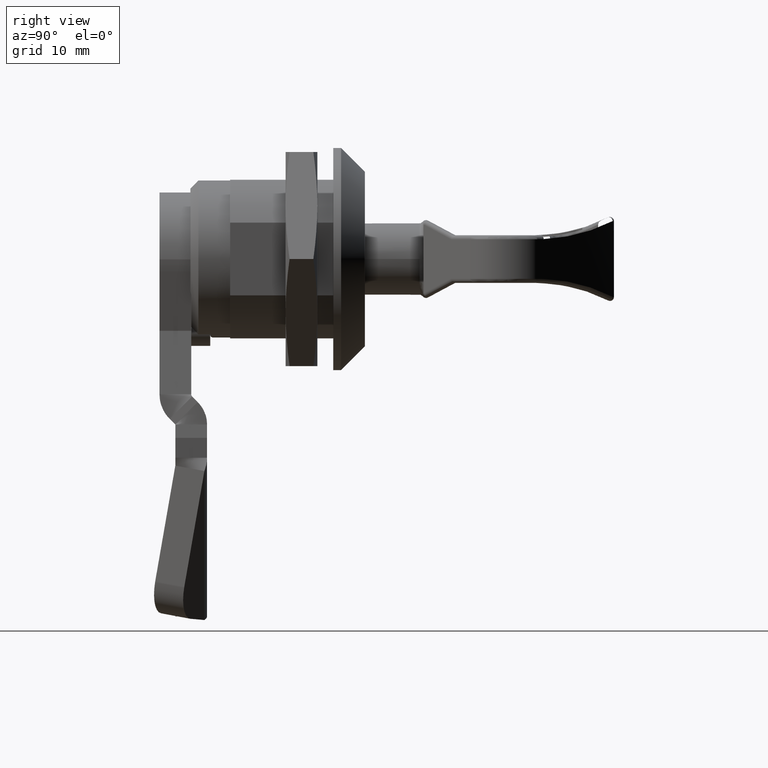
[diagram: clean part render]
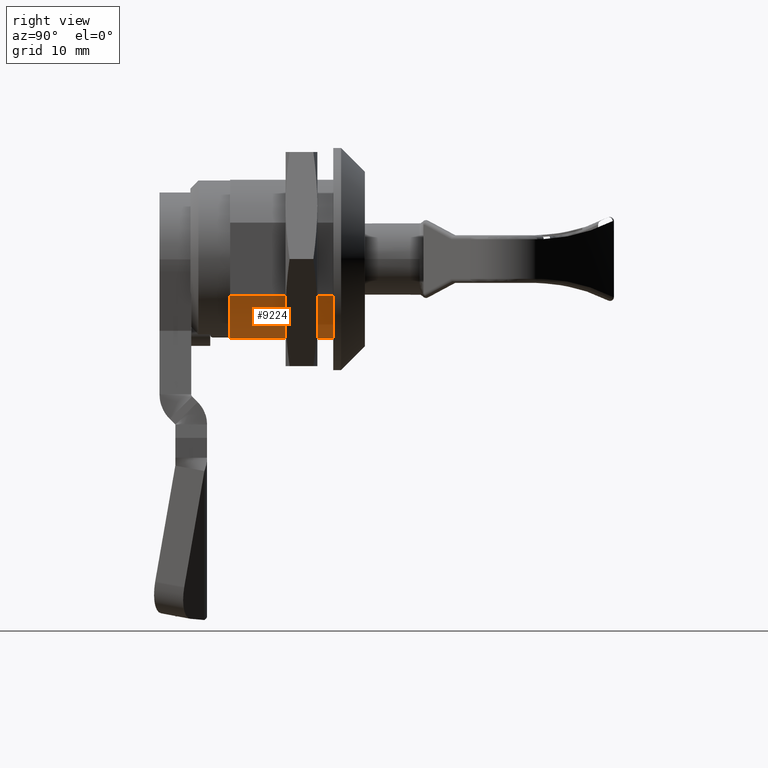
[diagram: same view with one face highlighted and labeled with its STEP entity id]
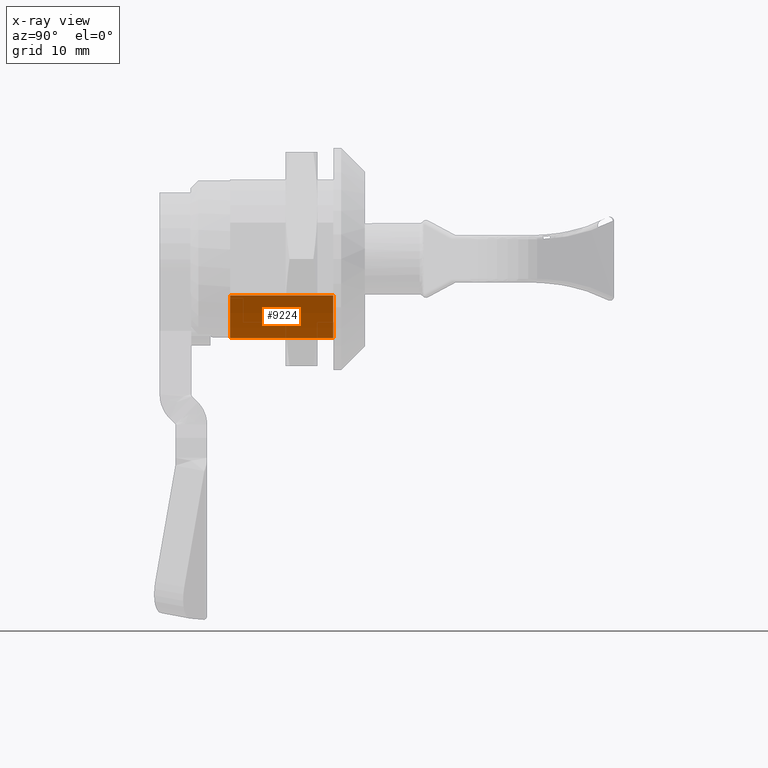
[diagram: x-ray of the same camera — body ghosted, the highlighted face saturated]
A machine part, right view. The second image highlights one B-rep face of the part: STEP entity #9224.
The next image is the same camera in x-ray: the body ghosted, the highlighted face saturated — about 0% of this face is hidden behind the body in this view.
In plain terms, the highlighted cylindrical surface (partial cylindrical patch) has radius 11 mm, axis along (0, -1, 0).
Its self-contained STEP definition (entity closure, byte-faithful):
#956 = DIRECTION ( 'NONE',  ( 6.938893903907203923E-15, 0.0000000000000000000, 1.000000000000000000 ) ) ;
#2403 = VERTEX_POINT ( 'NONE', #16404 ) ;
#2429 = DIRECTION ( 'NONE',  ( 1.768664140848895068E-15, -1.000000000000000000, 7.083634548733947862E-22 ) ) ;
#2511 = VECTOR ( 'NONE', #13858, 1000.000000000000000 ) ;
#2560 = DIRECTION ( 'NONE',  ( -1.768664140848895068E-15, 1.000000000000000000, -7.083634548733947862E-22 ) ) ;
#3003 = AXIS2_PLACEMENT_3D ( 'NONE', #8406, #2429, #14343 ) ;
#3179 = CARTESIAN_POINT ( 'NONE',  ( 10.04383272429396712, 21.89999999999986002, 8.549999999999444711 ) ) ;
#3688 = CYLINDRICAL_SURFACE ( 'NONE', #3003, 11.00000000000003908 ) ;
#4261 = ORIENTED_EDGE ( 'NONE', *, *, #6336, .T. ) ;
#6336 = EDGE_CURVE ( 'NONE', #11274, #13132, #9387, .T. ) ;
#6576 = VECTOR ( 'NONE', #2560, 1000.000000000000000 ) ;
#7542 = EDGE_CURVE ( 'NONE', #11274, #9112, #17861, .T. ) ;
#8297 = CARTESIAN_POINT ( 'NONE',  ( 10.04383272429399021, 8.899999999999961275, 8.549999999999444711 ) ) ;
#8406 = CARTESIAN_POINT ( 'NONE',  ( 10.04383272429395824, 26.99999999999996447, 8.549999999999666755 ) ) ;
#9112 = VERTEX_POINT ( 'NONE', #15737 ) ;
#9145 = AXIS2_PLACEMENT_3D ( 'NONE', #8297, #14229, #956 ) ;
#9224 = ADVANCED_FACE ( 'NONE', ( #15775 ), #3688, .T. ) ;
#9387 = LINE ( 'NONE', #12212, #2511 ) ;
#10109 = LINE ( 'NONE', #17070, #6576 ) ;
#10113 = CARTESIAN_POINT ( 'NONE',  ( 20.04383272429397067, 8.899999999999868905, 3.967424305043818933 ) ) ;
#11274 = VERTEX_POINT ( 'NONE', #17160 ) ;
#11711 = DIRECTION ( 'NONE',  ( 3.469446951953601961E-15, 0.0000000000000000000, 1.000000000000000000 ) ) ;
#11930 = CIRCLE ( 'NONE', #9145, 11.00000000000003908 ) ;
#12212 = CARTESIAN_POINT ( 'NONE',  ( 20.04383272429350527, 21.89999999999976765, 3.967424305043652399 ) ) ;
#13132 = VERTEX_POINT ( 'NONE', #10113 ) ;
#13442 = DIRECTION ( 'NONE',  ( -1.768664140848895068E-15, 1.000000000000000000, -7.083634548733947862E-22 ) ) ;
#13858 = DIRECTION ( 'NONE',  ( 1.768664140848895068E-15, -1.000000000000000000, 7.083634548733947862E-22 ) ) ;
#13859 = AXIS2_PLACEMENT_3D ( 'NONE', #3179, #13442, #11711 ) ;
#14229 = DIRECTION ( 'NONE',  ( 1.768664140848895068E-15, -1.000000000000000000, 7.083634548733947862E-22 ) ) ;
#14343 = DIRECTION ( 'NONE',  ( 6.938893903907203923E-15, 0.0000000000000000000, 1.000000000000000000 ) ) ;
#14959 = EDGE_LOOP ( 'NONE', ( #18387, #17787, #15436, #4261 ) ) ;
#15436 = ORIENTED_EDGE ( 'NONE', *, *, #7542, .F. ) ;
#15737 = CARTESIAN_POINT ( 'NONE',  ( 14.62640841924973323, 21.90000000000014424, -1.450000000000452705 ) ) ;
#15743 = EDGE_CURVE ( 'NONE', #2403, #13132, #11930, .T. ) ;
#15775 = FACE_OUTER_BOUND ( 'NONE', #14959, .T. ) ;
#16404 = CARTESIAN_POINT ( 'NONE',  ( 14.62640841924975632, 8.900000000000247269, -1.450000000000175149 ) ) ;
#17070 = CARTESIAN_POINT ( 'NONE',  ( 14.62640841924975632, 8.900000000000247269, -1.450000000000175149 ) ) ;
#17160 = CARTESIAN_POINT ( 'NONE',  ( 20.04383272429350527, 21.89999999999976765, 3.967427465933757613 ) ) ;
#17787 = ORIENTED_EDGE ( 'NONE', *, *, #19027, .T. ) ;
#17861 = CIRCLE ( 'NONE', #13859, 11.00000000000003908 ) ;
#18387 = ORIENTED_EDGE ( 'NONE', *, *, #15743, .F. ) ;
#19027 = EDGE_CURVE ( 'NONE', #2403, #9112, #10109, .T. ) ;